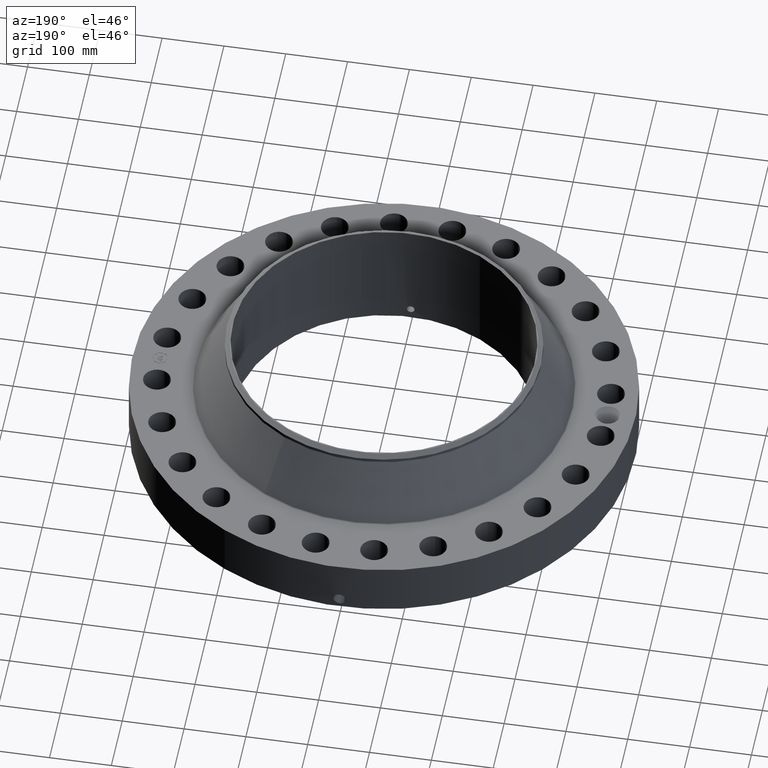
[diagram: clean part render]
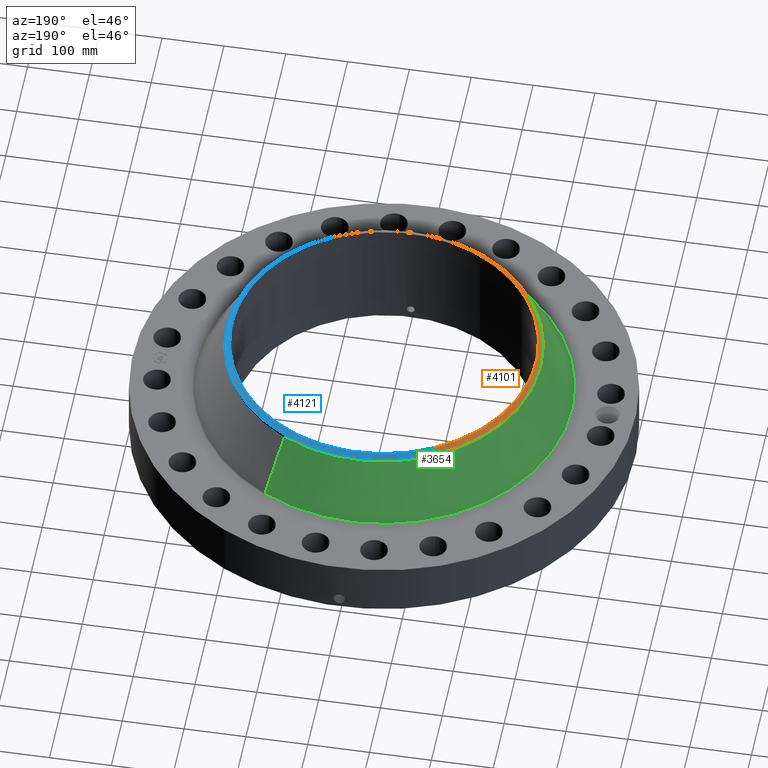
[diagram: same view with three faces highlighted in distinct colors, each labeled with its STEP entity id]
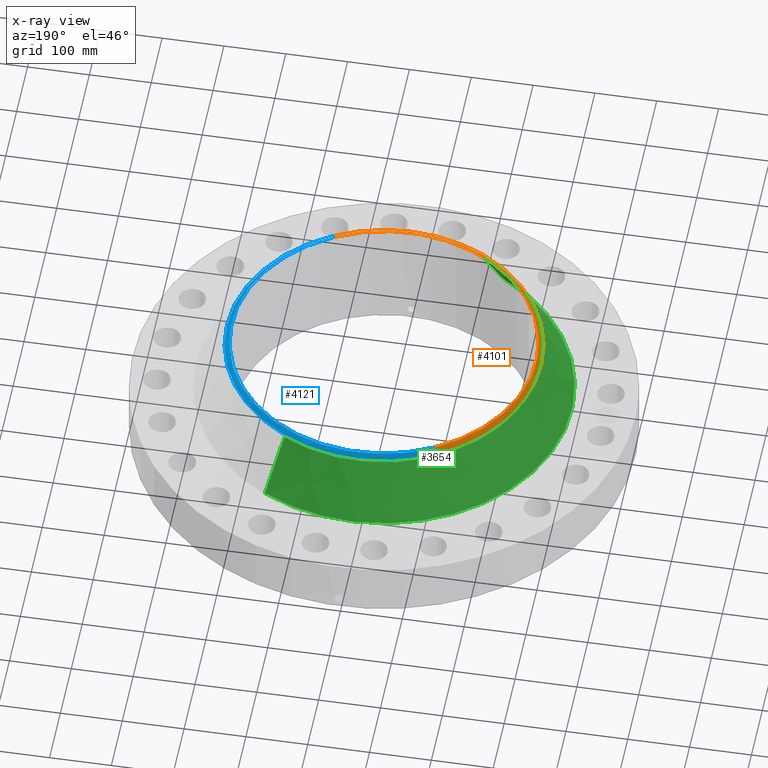
[diagram: x-ray of the same camera — body ghosted, the three highlighted faces saturated]
A machine part, auxiliary view with three faces highlighted in distinct colors.
The next image is the same camera in x-ray (body ghosted, the three faces saturated) — at least one of them is partly hidden behind the body in this view.
Their STEP definitions:

[orange] entity #4101 — the highlighted conical surface has half-angle 52.5 deg.
#3255=AXIS2_PLACEMENT_3D('Circle Axis2P3D',#3253,#3254,$) ;
#4066=AXIS2_PLACEMENT_3D('Cone Axis2P3D',#4063,#4064,#4065) ;
#4084=AXIS2_PLACEMENT_3D('Circle Axis2P3D',#4082,#4083,$) ;
#4091=AXIS2_PLACEMENT_3D('Circle Axis2P3D',#4089,#4090,$) ;
#3248=CARTESIAN_POINT('Vertex',(4.65222085149,-8.51583314735,7.75000000003)) ;
#3250=CARTESIAN_POINT('Vertex',(-4.65222085149,8.51583314735,7.75000000003)) ;
#3253=CARTESIAN_POINT('Axis2P3D Location',(0.,0.,7.75000000003)) ;
#4063=CARTESIAN_POINT('Axis2P3D Location',(0.,0.,7.75000000003)) ;
#4068=CARTESIAN_POINT('Line Origine',(4.72323811878,-8.64582938315,7.63633591372)) ;
#4072=CARTESIAN_POINT('Vertex',(4.79425538606,-8.77582561894,7.52267182741)) ;
#4075=CARTESIAN_POINT('Line Origine',(-4.72323811878,8.64582938315,7.63633591372)) ;
#4079=CARTESIAN_POINT('Vertex',(-4.79425538606,8.77582561894,7.52267182741)) ;
#4082=CARTESIAN_POINT('Axis2P3D Location',(0.,0.,7.52267182741)) ;
#4086=CARTESIAN_POINT('Vertex',(-4.79425538606,-8.77582561894,7.52267182741)) ;
#4089=CARTESIAN_POINT('Axis2P3D Location',(0.,0.,7.52267182741)) ;
#3254=DIRECTION('Axis2P3D Direction',(0.,0.,-0.0393700787402)) ;
#4064=DIRECTION('Axis2P3D Direction',(-0.,-0.,-0.0393700787402)) ;
#4065=DIRECTION('Axis2P3D XDirection',(-0.0188750212049,0.0345504945626,0.)) ;
#4069=DIRECTION('Vector Direction',(0.014974561121,-0.02741075027,-0.023966985394)) ;
#4076=DIRECTION('Vector Direction',(-0.014974561121,0.02741075027,-0.023966985394)) ;
#4083=DIRECTION('Axis2P3D Direction',(0.,0.,-0.0393700787402)) ;
#4090=DIRECTION('Axis2P3D Direction',(0.,0.,-0.0393700787402)) ;
#4070=VECTOR('Line Direction',#4069,0.0393700787402) ;
#4077=VECTOR('Line Direction',#4076,0.0393700787402) ;
#4095=ORIENTED_EDGE('',*,*,#4074,.F.) ;
#4096=ORIENTED_EDGE('',*,*,#3257,.F.) ;
#4097=ORIENTED_EDGE('',*,*,#4081,.T.) ;
#4098=ORIENTED_EDGE('',*,*,#4088,.T.) ;
#4099=ORIENTED_EDGE('',*,*,#4093,.F.) ;
#4101=ADVANCED_FACE('PartBody',(#4100),#4067,.T.) ;
#3256=CIRCLE('generated circle',#3255,9.70374015752) ;
#4085=CIRCLE('generated circle',#4084,10.) ;
#4092=CIRCLE('generated circle',#4091,10.) ;
#4067=CONICAL_SURFACE('Cone',#4066,9.70374015752,0.916297857297) ;
#3257=EDGE_CURVE('',#3251,#3249,#3256,.F.) ;
#4074=EDGE_CURVE('',#3249,#4073,#4071,.T.) ;
#4081=EDGE_CURVE('',#3251,#4080,#4078,.T.) ;
#4088=EDGE_CURVE('',#4080,#4087,#4085,.F.) ;
#4093=EDGE_CURVE('',#4073,#4087,#4092,.T.) ;
#4094=EDGE_LOOP('',(#4095,#4096,#4097,#4098,#4099)) ;
#4100=FACE_OUTER_BOUND('',#4094,.T.) ;
#4071=LINE('Line',#4068,#4070) ;
#4078=LINE('Line',#4075,#4077) ;
#3249=VERTEX_POINT('',#3248) ;
#3251=VERTEX_POINT('',#3250) ;
#4073=VERTEX_POINT('',#4072) ;
#4080=VERTEX_POINT('',#4079) ;
#4087=VERTEX_POINT('',#4086) ;

[blue] entity #4121 — the highlighted conical surface has half-angle 52.5 deg.
#3246=AXIS2_PLACEMENT_3D('Circle Axis2P3D',#3244,#3245,$) ;
#4066=AXIS2_PLACEMENT_3D('Cone Axis2P3D',#4063,#4064,#4065) ;
#4104=AXIS2_PLACEMENT_3D('Circle Axis2P3D',#4102,#4103,$) ;
#4111=AXIS2_PLACEMENT_3D('Circle Axis2P3D',#4109,#4110,$) ;
#3244=CARTESIAN_POINT('Axis2P3D Location',(0.,0.,7.75000000003)) ;
#3248=CARTESIAN_POINT('Vertex',(4.65222085149,-8.51583314735,7.75000000003)) ;
#3250=CARTESIAN_POINT('Vertex',(-4.65222085149,8.51583314735,7.75000000003)) ;
#4063=CARTESIAN_POINT('Axis2P3D Location',(0.,0.,7.75000000003)) ;
#4068=CARTESIAN_POINT('Line Origine',(4.72323811878,-8.64582938315,7.63633591372)) ;
#4072=CARTESIAN_POINT('Vertex',(4.79425538606,-8.77582561894,7.52267182741)) ;
#4075=CARTESIAN_POINT('Line Origine',(-4.72323811878,8.64582938315,7.63633591372)) ;
#4079=CARTESIAN_POINT('Vertex',(-4.79425538606,8.77582561894,7.52267182741)) ;
#4102=CARTESIAN_POINT('Axis2P3D Location',(0.,0.,7.52267182741)) ;
#4106=CARTESIAN_POINT('Vertex',(4.79425538606,8.77582561894,7.52267182741)) ;
#4109=CARTESIAN_POINT('Axis2P3D Location',(0.,0.,7.52267182741)) ;
#3245=DIRECTION('Axis2P3D Direction',(0.,0.,-0.0393700787402)) ;
#4064=DIRECTION('Axis2P3D Direction',(-0.,-0.,-0.0393700787402)) ;
#4065=DIRECTION('Axis2P3D XDirection',(-0.0188750212049,0.0345504945626,0.)) ;
#4069=DIRECTION('Vector Direction',(0.014974561121,-0.02741075027,-0.023966985394)) ;
#4076=DIRECTION('Vector Direction',(-0.014974561121,0.02741075027,-0.023966985394)) ;
#4103=DIRECTION('Axis2P3D Direction',(0.,0.,-0.0393700787402)) ;
#4110=DIRECTION('Axis2P3D Direction',(0.,0.,-0.0393700787402)) ;
#4070=VECTOR('Line Direction',#4069,0.0393700787402) ;
#4077=VECTOR('Line Direction',#4076,0.0393700787402) ;
#4115=ORIENTED_EDGE('',*,*,#4081,.F.) ;
#4116=ORIENTED_EDGE('',*,*,#3252,.F.) ;
#4117=ORIENTED_EDGE('',*,*,#4074,.T.) ;
#4118=ORIENTED_EDGE('',*,*,#4108,.T.) ;
#4119=ORIENTED_EDGE('',*,*,#4113,.F.) ;
#4121=ADVANCED_FACE('PartBody',(#4120),#4067,.T.) ;
#3247=CIRCLE('generated circle',#3246,9.70374015752) ;
#4105=CIRCLE('generated circle',#4104,10.) ;
#4112=CIRCLE('generated circle',#4111,10.) ;
#4067=CONICAL_SURFACE('Cone',#4066,9.70374015752,0.916297857297) ;
#3252=EDGE_CURVE('',#3249,#3251,#3247,.F.) ;
#4074=EDGE_CURVE('',#3249,#4073,#4071,.T.) ;
#4081=EDGE_CURVE('',#3251,#4080,#4078,.T.) ;
#4108=EDGE_CURVE('',#4073,#4107,#4105,.F.) ;
#4113=EDGE_CURVE('',#4080,#4107,#4112,.T.) ;
#4114=EDGE_LOOP('',(#4115,#4116,#4117,#4118,#4119)) ;
#4120=FACE_OUTER_BOUND('',#4114,.T.) ;
#4071=LINE('Line',#4068,#4070) ;
#4078=LINE('Line',#4075,#4077) ;
#3249=VERTEX_POINT('',#3248) ;
#3251=VERTEX_POINT('',#3250) ;
#4073=VERTEX_POINT('',#4072) ;
#4080=VERTEX_POINT('',#4079) ;
#4107=VERTEX_POINT('',#4106) ;

[green] entity #3654 — the highlighted conical surface has half-angle 29.49 deg.
#2936=AXIS2_PLACEMENT_3D('Circle Axis2P3D',#2934,#2935,$) ;
#3615=AXIS2_PLACEMENT_3D('Cone Axis2P3D',#3612,#3613,#3614) ;
#3645=AXIS2_PLACEMENT_3D('Circle Axis2P3D',#3643,#3644,$) ;
#2912=CARTESIAN_POINT('Vertex',(5.73658691231,10.5007519075,3.81092769751)) ;
#2919=CARTESIAN_POINT('Vertex',(-5.73658691231,-10.5007519075,3.81092769751)) ;
#2934=CARTESIAN_POINT('Axis2P3D Location',(0.,0.,3.81092769751)) ;
#3612=CARTESIAN_POINT('Axis2P3D Location',(0.,0.,7.28645135497)) ;
#3617=CARTESIAN_POINT('Line Origine',(5.26542114919,9.63828876323,5.54868952624)) ;
#3621=CARTESIAN_POINT('Vertex',(4.79425538606,8.77582561894,7.28645135497)) ;
#3628=CARTESIAN_POINT('Vertex',(-4.79425538606,-8.77582561894,7.28645135497)) ;
#3631=CARTESIAN_POINT('Line Origine',(-5.26542114919,-9.63828876323,5.54868952624)) ;
#3643=CARTESIAN_POINT('Axis2P3D Location',(0.,0.,7.28645135497)) ;
#2935=DIRECTION('Axis2P3D Direction',(0.,0.,-0.0393700787402)) ;
#3613=DIRECTION('Axis2P3D Direction',(0.,0.,-0.0393700787402)) ;
#3614=DIRECTION('Axis2P3D XDirection',(-0.0188750212049,-0.0345504945626,0.)) ;
#3618=DIRECTION('Vector Direction',(0.00929159135356,0.0170081438879,-0.034269410144)) ;
#3632=DIRECTION('Vector Direction',(-0.00929159135356,-0.0170081438879,-0.034269410144)) ;
#3644=DIRECTION('Axis2P3D Direction',(0.,0.,-0.0393700787402)) ;
#3619=VECTOR('Line Direction',#3618,0.0393700787402) ;
#3633=VECTOR('Line Direction',#3632,0.0393700787402) ;
#3649=ORIENTED_EDGE('',*,*,#2938,.F.) ;
#3650=ORIENTED_EDGE('',*,*,#3635,.T.) ;
#3651=ORIENTED_EDGE('',*,*,#3647,.T.) ;
#3652=ORIENTED_EDGE('',*,*,#3623,.F.) ;
#3654=ADVANCED_FACE('PartBody',(#3653),#3616,.T.) ;
#2937=CIRCLE('generated circle',#2936,11.965543031) ;
#3646=CIRCLE('generated circle',#3645,10.) ;
#3616=CONICAL_SURFACE('Cone',#3615,10.,0.514694771037) ;
#2938=EDGE_CURVE('',#2920,#2913,#2937,.T.) ;
#3623=EDGE_CURVE('',#2913,#3622,#3620,.F.) ;
#3635=EDGE_CURVE('',#2920,#3629,#3634,.F.) ;
#3647=EDGE_CURVE('',#3629,#3622,#3646,.T.) ;
#3648=EDGE_LOOP('',(#3649,#3650,#3651,#3652)) ;
#3653=FACE_OUTER_BOUND('',#3648,.T.) ;
#3620=LINE('Line',#3617,#3619) ;
#3634=LINE('Line',#3631,#3633) ;
#2913=VERTEX_POINT('',#2912) ;
#2920=VERTEX_POINT('',#2919) ;
#3622=VERTEX_POINT('',#3621) ;
#3629=VERTEX_POINT('',#3628) ;